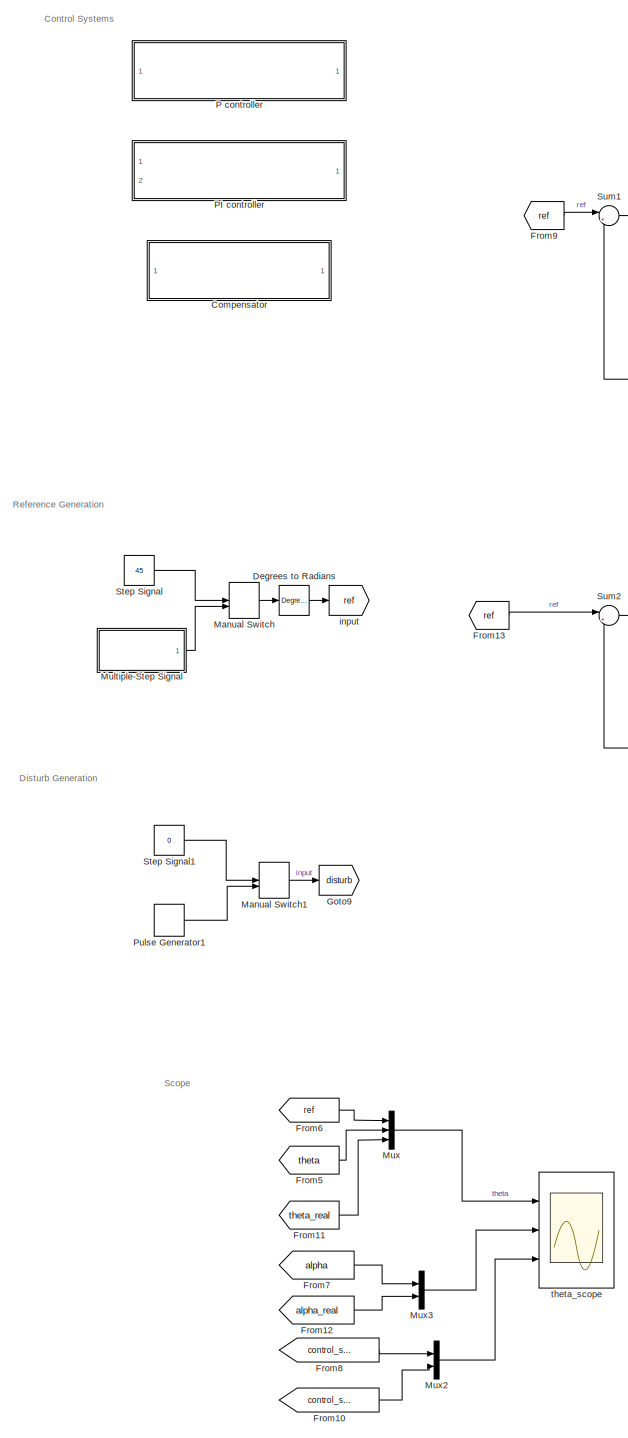
[diagram: root canvas - part 1/3, left side, full height]
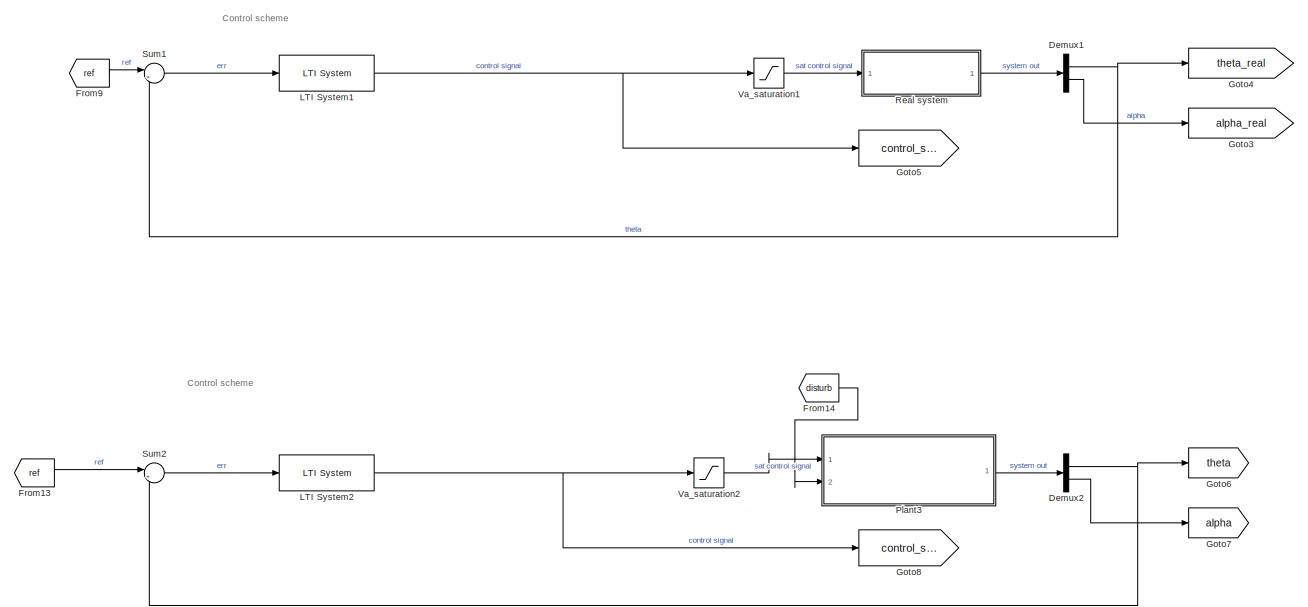
[diagram: root canvas - part 2/3, full width, top band]
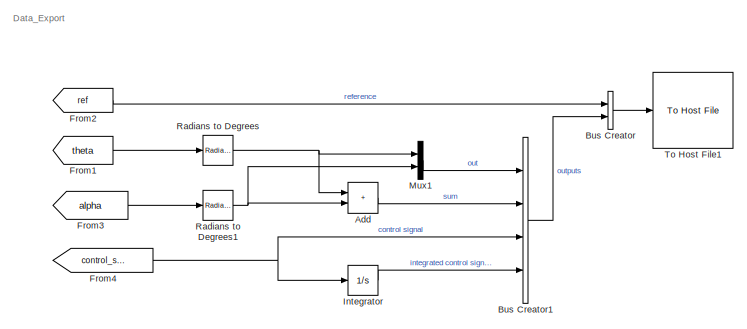
[diagram: root canvas - part 3/3, bottom right region]
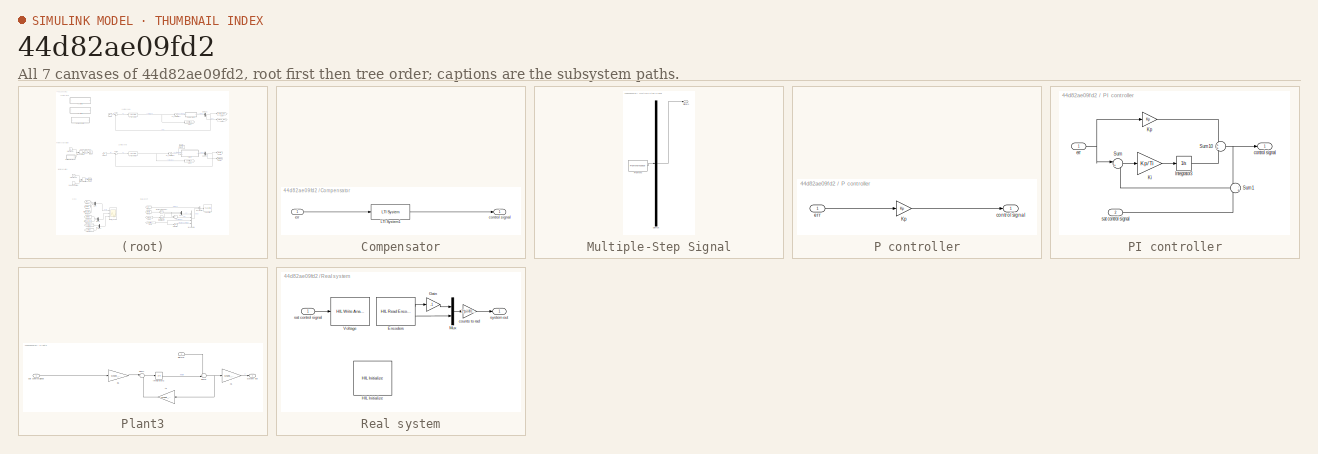
[diagram: thumbnail index - all 7 canvases of the model, root first then tree order]
MODEL slx_44d82ae09fd2
KIND model
CONFIG AbsTol = auto
CONFIG EnableMultiTasking = off
CONFIG FixedStep = auto
CONFIG MaxStep = auto
CONFIG MinStep = auto
CONFIG RelTol = 1e-3
CONFIG SampleTimeConstraint = Unconstrained
CONFIG Solver = VariableStepAuto
CONFIG SolverName = VariableStepAuto
CONFIG StartTime = 0.0
CONFIG StopTime = 10.0
BLOCK [Sum] Add
  IconShape = rectangular
  Ports = [2, 1]
BLOCK [BusCreator] Bus Creator
  DisplayOption = bar
  InheritFromInputs = on
  Inputs = 2
  Ports = [2, 1]
BLOCK [BusCreator] Bus Creator1
  DisplayOption = bar
  InheritFromInputs = on
  Inputs = 4
  Ports = [4, 1]
BLOCK [SubSystem] Compensator
  Commented = on
  Ports = [1, 1]
BLOCK [Reference] Compensator/LTI System1  REF=cstblocks/LTI System
  Ports = [1, 1]
  SourceBlock = cstblocks/LTI System
  SourceType = LTI Block
BLOCK [Outport] Compensator/control signal
BLOCK [Inport] Compensator/err
BLOCK [Reference] Degrees to Radians  REF=simulink_extras/Transformations/Degrees to
Radians
  Ports = [1, 1]
  SourceBlock = simulink_extras/Transformations/Degrees to\nRadians
  SourceType = DegreesToRadians
BLOCK [Demux] Demux1
  Commented = on
  Outputs = 2
  Ports = [1, 2]
BLOCK [Demux] Demux2
  Outputs = 2
  Ports = [1, 2]
BLOCK [From] From1
  GotoTag = theta
BLOCK [From] From10
  GotoTag = control_signal_real
BLOCK [From] From11
  GotoTag = theta_real
BLOCK [From] From12
  GotoTag = alpha_real
BLOCK [From] From13
  GotoTag = ref
BLOCK [From] From14
  GotoTag = disturb
BLOCK [From] From2
  GotoTag = ref
BLOCK [From] From3
  GotoTag = alpha
BLOCK [From] From4
  GotoTag = control_signal
BLOCK [From] From5
  GotoTag = theta
BLOCK [From] From6
  GotoTag = ref
BLOCK [From] From7
  GotoTag = alpha
BLOCK [From] From8
  GotoTag = control_signal
BLOCK [From] From9
  Commented = on
  GotoTag = ref
BLOCK [Goto] Goto3
  Commented = on
  GotoTag = alpha_real
BLOCK [Goto] Goto4
  Commented = on
  GotoTag = theta_real
BLOCK [Goto] Goto5
  Commented = on
  GotoTag = control_signal_real
BLOCK [Goto] Goto6
  GotoTag = theta
BLOCK [Goto] Goto7
  GotoTag = alpha
BLOCK [Goto] Goto8
  GotoTag = control_signal
BLOCK [Goto] Goto9
  GotoTag = disturb
BLOCK [Integrator] Integrator
  Ports = [1, 1]
BLOCK [Reference] LTI System1  REF=cstblocks/LTI System
  Ports = [1, 1]
  SourceBlock = cstblocks/LTI System
  SourceType = LTI Block
BLOCK [Reference] LTI System2  REF=cstblocks/LTI System
  Ports = [1, 1]
  SourceBlock = cstblocks/LTI System
  SourceType = LTI Block
BLOCK [ManualSwitch] Manual Switch
BLOCK [ManualSwitch] Manual Switch1
BLOCK [SubSystem] Multiple-Step Signal
  ClipboardFcn = sigbuilder_block('clipboard');
  CloseFcn = sigbuilder_block('close');
  ContinueFcn = sigbuilder_block('continue');
  CopyFcn = sigbuilder_block('copy');
  DeleteFcn = sigbuilder_block('delete');
  LoadFcn = sigbuilder_block('load');
  MaskHideContents = on
  ModelCloseFcn = sigbuilder_block('modelClose');
  NameChangeFcn = sigbuilder_block('namechange');
  OpenFcn = sigbuilder_block('open',[437.6 199.2 550.4 400 ]);
  PauseFcn = sigbuilder_block('pause');
  Ports = [0, 1]
  PreSaveFcn = sigbuilder_block('preSave');
  StartFcn = sigbuilder_block('start');
  StopFcn = sigbuilder_block('stop');
  Tag = STV Subsys
BLOCK [Demux] Multiple-Step Signal/Demux
  DisplayOption = none
  Outputs = 1
  Ports = [1, 1]
  Tag = STV Demux
BLOCK [FromWorkspace] Multiple-Step Signal/FromWs
  Tag = STV FromWs
  VariableName = tuvar
BLOCK [Outport] Multiple-Step Signal/Signal 1
  Tag = STV Outport
BLOCK [Mux] Mux
  DisplayOption = bar
  Inputs = 3
  Ports = [3, 1]
BLOCK [Mux] Mux1
  DisplayOption = bar
  Inputs = 2
  Ports = [2, 1]
BLOCK [Mux] Mux2
  DisplayOption = bar
  Inputs = 2
  Ports = [2, 1]
BLOCK [Mux] Mux3
  DisplayOption = bar
  Inputs = 2
  Ports = [2, 1]
BLOCK [SubSystem] P controller
  Commented = on
  Ports = [1, 1]
BLOCK [Gain] P controller/Kp
  Gain = Kp
BLOCK [Outport] P controller/control signal
BLOCK [Inport] P controller/err
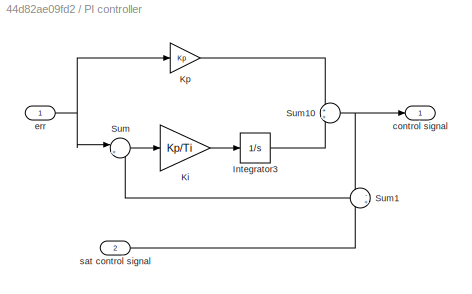
BLOCK [SubSystem] PI controller
  Commented = on
  Ports = [2, 1]
BLOCK [Integrator] PI controller/Integrator3
  Ports = [1, 1]
BLOCK [Gain] PI controller/Ki
  Gain = Kp/Ti
BLOCK [Gain] PI controller/Kp
  Gain = Kp
BLOCK [Sum] PI controller/Sum
  Inputs = |++
  Ports = [2, 1]
BLOCK [Sum] PI controller/Sum1
  Inputs = -+
  Ports = [2, 1]
BLOCK [Sum] PI controller/Sum10
  Ports = [2, 1]
BLOCK [Outport] PI controller/control signal
BLOCK [Inport] PI controller/err
BLOCK [Inport] PI controller/sat control signal
  Port = 2
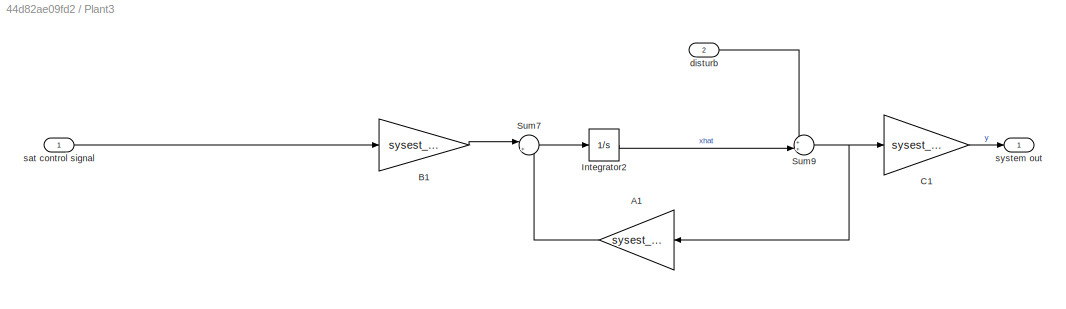
BLOCK [SubSystem] Plant3
  Ports = [2, 1]
BLOCK [Gain] Plant3/A1
  Gain = sysest_ct.A
  Multiplication = Matrix(K*u)
BLOCK [Gain] Plant3/B1
  Gain = sysest_ct.B
  Multiplication = Matrix(K*u)
BLOCK [Gain] Plant3/C1
  Gain = sysest_ct.C
  Multiplication = Matrix(K*u)
BLOCK [Integrator] Plant3/Integrator2
  Ports = [1, 1]
BLOCK [Sum] Plant3/Sum7
  Inputs = |++
  Ports = [2, 1]
BLOCK [Sum] Plant3/Sum9
  Inputs = ++|
  Ports = [2, 1]
BLOCK [Inport] Plant3/disturb
  Port = 2
BLOCK [Inport] Plant3/sat control signal
BLOCK [Outport] Plant3/system out
BLOCK [DiscretePulseGenerator] Pulse Generator1
  Amplitude = .2
  Period = 1.5
  Ports = [0, 1]
  PulseType = Time based
  PulseWidth = 5
BLOCK [Reference] Radians to Degrees  REF=simulink_extras/Transformations/Radians
to Degrees
  Ports = [1, 1]
  SourceBlock = simulink_extras/Transformations/Radians\nto Degrees
  SourceType = RadiansToDegrees
BLOCK [Reference] Radians to Degrees1  REF=simulink_extras/Transformations/Radians
to Degrees
  Ports = [1, 1]
  SourceBlock = simulink_extras/Transformations/Radians\nto Degrees
  SourceType = RadiansToDegrees
BLOCK [SubSystem] Real system
  Commented = on
  Ports = [1, 1]
BLOCK [Reference] Real system/Encoders  REF=quarc_library/Data Acquisition/Generic/Timebases/HIL Read Encoder
Timebase
  AttributesFormatString = (%<object_name>)
  Ports = [0, 2]
  SourceBlock = quarc_library/Data Acquisition/Generic/Timebases/HIL Read Encoder\nTimebase
  SourceType = HIL Read Encoder Timebase
  UserDataPersistent = on
BLOCK [Gain] Real system/Gain
  Gain = -1
BLOCK [Reference] Real system/HIL Initialize  REF=quarc_library/Data Acquisition/Generic/Configuration/HIL Initialize
  AttributesFormatString = %<object_name> (%<board_type>-%<board_number>)
  Commented = on
  Ports = []
  Priority = -99
  SourceBlock = quarc_library/Data Acquisition/Generic/Configuration/HIL Initialize
  SourceType = HIL Initialize
  UserDataPersistent = on
BLOCK [Mux] Real system/Mux
  DisplayOption = bar
  Inputs = 2
  Ports = [2, 1]
BLOCK [Reference] Real system/Voltage  REF=quarc_library/Data Acquisition/Generic/Immediate I//O/HIL Write Analog
  AttributesFormatString = (%<object_name>)
  Ports = [1]
  SourceBlock = quarc_library/Data Acquisition/Generic/Immediate I//O/HIL Write Analog
  SourceType = HIL Write Analog
  UserDataPersistent = on
BLOCK [Gain] Real system/counts to rad
  Gain = 2*pi/4096
BLOCK [Inport] Real system/sat control signal
BLOCK [Outport] Real system/system out
BLOCK [Constant] Step Signal
  Value = 45
BLOCK [Constant] Step Signal1
  Value = 0
BLOCK [Sum] Sum1
  Commented = on
  Inputs = |+-
  Ports = [2, 1]
BLOCK [Sum] Sum2
  Inputs = |+-
  Ports = [2, 1]
BLOCK [Reference] To Host File1  REF=quarc_library/Sinks/To Host/To Host File
  AttributesFormatString = %<final_file_name>
  Commented = on
  Ports = [1]
  SourceBlock = quarc_library/Sinks/To Host/To Host File
  SourceType = To Host File
BLOCK [Saturate] Va_saturation1
  Commented = on
  LowerLimit = -v_a_max
  UpperLimit = v_a_max
BLOCK [Saturate] Va_saturation2
  LowerLimit = -v_a_max
  UpperLimit = v_a_max
BLOCK [Goto] input
  GotoTag = ref
BLOCK [Scope] theta_scope
  Floating = off
  NumInputPorts = 3
  Ports = [3]
  ScopeSpecificationString = Simulink.scopes.TimeScopeBlockCfg('CurrentConfiguration', extmgr.ConfigurationSet(extmgr.Configuration('Core','General UI',true),extmgr.Configuration('Core','Source UI',true),extmgr.Configuration('Sources','WiredSimulink',true,'DataLoggingVariableName','ScopeData1'),extmgr.Configuration('Visuals','Time Domain',true,'SerializedDisplays',{struct('MinYLimReal','-0.11833','MaxYLimReal','1.06269','YLab...<+3178ch>
ANNOTATION (root): Control Systems
ANNOTATION (root): Control scheme
ANNOTATION (root): Data_Export
ANNOTATION (root): Disturb Generation
ANNOTATION (root): Reference Generation
ANNOTATION (root): Scope
LINE Add:1 -> Bus Creator1:2
LINE Bus Creator1:1 -> Bus Creator:2
LINE Bus Creator:1 -> To Host File1:1
LINE Compensator/LTI System1:1 -> Compensator/control signal:1
LINE Compensator/err:1 -> Compensator/LTI System1:1
LINE Degrees to Radians:1 -> input:1
NET Demux1:1 -> Goto4:1, Sum1:2
LINE Demux1:2 -> Goto3:1
NET Demux2:1 -> Goto6:1, Sum2:2
LINE Demux2:2 -> Goto7:1
LINE From10:1 -> Mux2:2
LINE From11:1 -> Mux:3
LINE From12:1 -> Mux3:2
LINE From13:1 -> Sum2:1
LINE From14:1 -> Plant3:2
LINE From1:1 -> Radians to Degrees:1
LINE From2:1 -> Bus Creator:1
LINE From3:1 -> Radians to Degrees1:1
NET From4:1 -> Bus Creator1:3, Integrator:1
LINE From5:1 -> Mux:2
LINE From6:1 -> Mux:1
LINE From7:1 -> Mux3:1
LINE From8:1 -> Mux2:1
LINE From9:1 -> Sum1:1
LINE Integrator:1 -> Bus Creator1:4
NET LTI System1:1 -> Goto5:1, Va_saturation1:1
NET LTI System2:1 -> Goto8:1, Va_saturation2:1
LINE Manual Switch1:1 -> Goto9:1
LINE Manual Switch:1 -> Degrees to Radians:1
LINE Multiple-Step Signal:1 -> Manual Switch:2
LINE Mux1:1 -> Bus Creator1:1
LINE Mux2:1 -> theta_scope:3
LINE Mux3:1 -> theta_scope:2
LINE Mux:1 -> theta_scope:1
LINE P controller/Kp:1 -> P controller/control signal:1
LINE P controller/err:1 -> P controller/Kp:1
LINE PI controller/Integrator3:1 -> PI controller/Sum10:2
LINE PI controller/Ki:1 -> PI controller/Integrator3:1
LINE PI controller/Kp:1 -> PI controller/Sum10:1
NET PI controller/Sum10:1 -> PI controller/Sum1:1, PI controller/control signal:1
LINE PI controller/Sum1:1 -> PI controller/Sum:2
LINE PI controller/Sum:1 -> PI controller/Ki:1
NET PI controller/err:1 -> PI controller/Kp:1, PI controller/Sum:1
LINE PI controller/sat control signal:1 -> PI controller/Sum1:2
LINE Plant3/A1:1 -> Plant3/Sum7:2
LINE Plant3/B1:1 -> Plant3/Sum7:1
LINE Plant3/C1:1 -> Plant3/system out:1
LINE Plant3/Integrator2:1 -> Plant3/Sum9:2
LINE Plant3/Sum7:1 -> Plant3/Integrator2:1
NET Plant3/Sum9:1 -> Plant3/A1:1, Plant3/C1:1
LINE Plant3/disturb:1 -> Plant3/Sum9:1
LINE Plant3/sat control signal:1 -> Plant3/B1:1
LINE Plant3:1 -> Demux2:1
LINE Pulse Generator1:1 -> Manual Switch1:2
NET Radians to Degrees1:1 -> Add:2, Mux1:2
NET Radians to Degrees:1 -> Add:1, Mux1:1
LINE Real system/Encoders:1 -> Real system/Gain:1
LINE Real system/Encoders:2 -> Real system/Mux:2
LINE Real system/Gain:1 -> Real system/Mux:1
LINE Real system/Mux:1 -> Real system/counts to rad:1
LINE Real system/counts to rad:1 -> Real system/system out:1
LINE Real system/sat control signal:1 -> Real system/Voltage:1
LINE Real system:1 -> Demux1:1
LINE Step Signal1:1 -> Manual Switch1:1
LINE Step Signal:1 -> Manual Switch:1
LINE Sum1:1 -> LTI System1:1
LINE Sum2:1 -> LTI System2:1
LINE Va_saturation1:1 -> Real system:1
LINE Va_saturation2:1 -> Plant3:1
note: NET lines group one-source signal fan-out (src -> all destinations, sorted); 1:1 wires keep LINE
